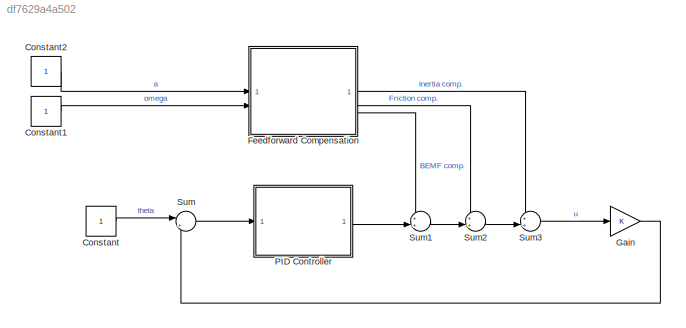
MODEL slx_df7629a4a502
KIND model
CONFIG AbsTol = auto
CONFIG EnableMultiTasking = off
CONFIG FixedStep = auto
CONFIG MaxStep = auto
CONFIG MinStep = auto
CONFIG RelTol = 1e-3
CONFIG SampleTimeConstraint = Unconstrained
CONFIG SolverName = VariableStepAuto
CONFIG StartTime = 0.0
CONFIG StopTime = 10.0
BLOCK [Constant] Constant
BLOCK [Constant] Constant1
BLOCK [Constant] Constant2
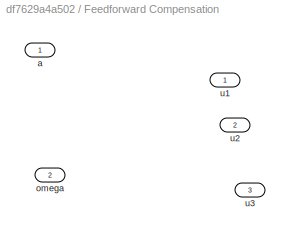
BLOCK [SubSystem] Feedforward Compensation
BLOCK [Inport] Feedforward Compensation/a
BLOCK [Inport] Feedforward Compensation/omega
  Port = 2
BLOCK [Outport] Feedforward Compensation/u1
BLOCK [Outport] Feedforward Compensation/u2
  Port = 2
BLOCK [Outport] Feedforward Compensation/u3
  Port = 3
BLOCK [Gain] Gain
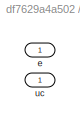
BLOCK [SubSystem] PID Controller
BLOCK [Inport] PID Controller/e
BLOCK [Outport] PID Controller/uc
BLOCK [Sum] Sum
  Inputs = |+-
BLOCK [Sum] Sum1
  Inputs = ++|
BLOCK [Sum] Sum2
  Inputs = ++|
BLOCK [Sum] Sum3
  Inputs = ++|
LINE Constant1:1 -> Feedforward Compensation:2
LINE Constant2:1 -> Feedforward Compensation:1
LINE Constant:1 -> Sum:1
LINE Feedforward Compensation:1 -> Sum3:1
LINE Feedforward Compensation:2 -> Sum2:1
LINE Feedforward Compensation:3 -> Sum1:1
LINE Gain:1 -> Sum:2
LINE PID Controller:1 -> Sum1:2
LINE Sum1:1 -> Sum2:2
LINE Sum2:1 -> Sum3:2
LINE Sum3:1 -> Gain:1
LINE Sum:1 -> PID Controller:1
